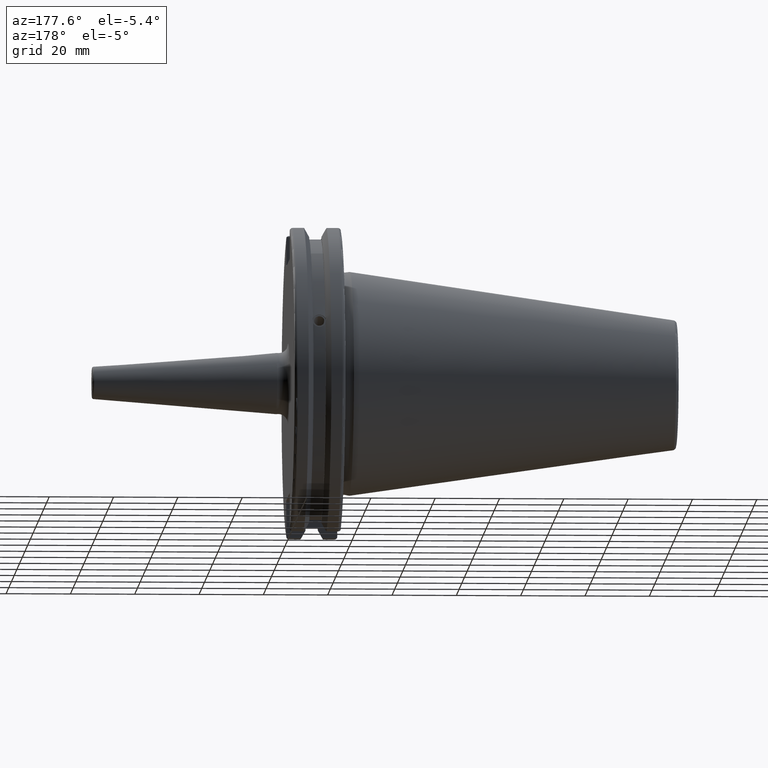
[diagram: clean part render]
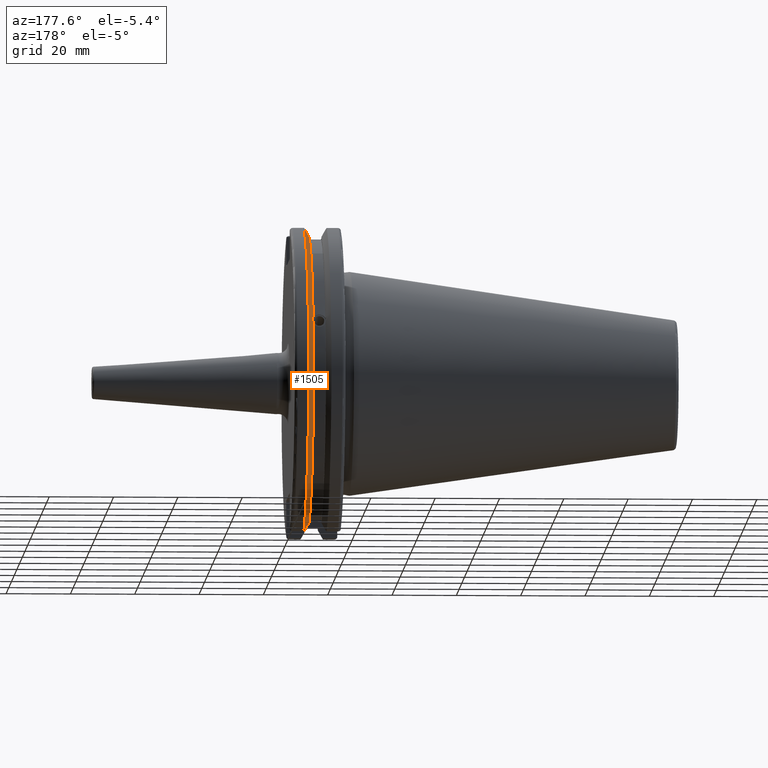
[diagram: same view with one face highlighted and labeled with its STEP entity id]
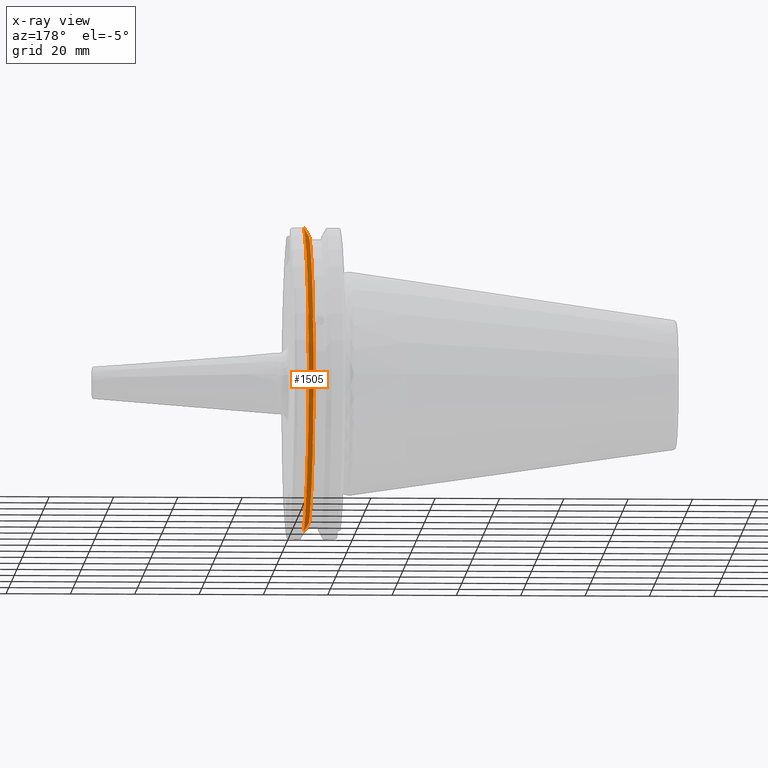
[diagram: x-ray of the same camera — body ghosted, the highlighted face saturated]
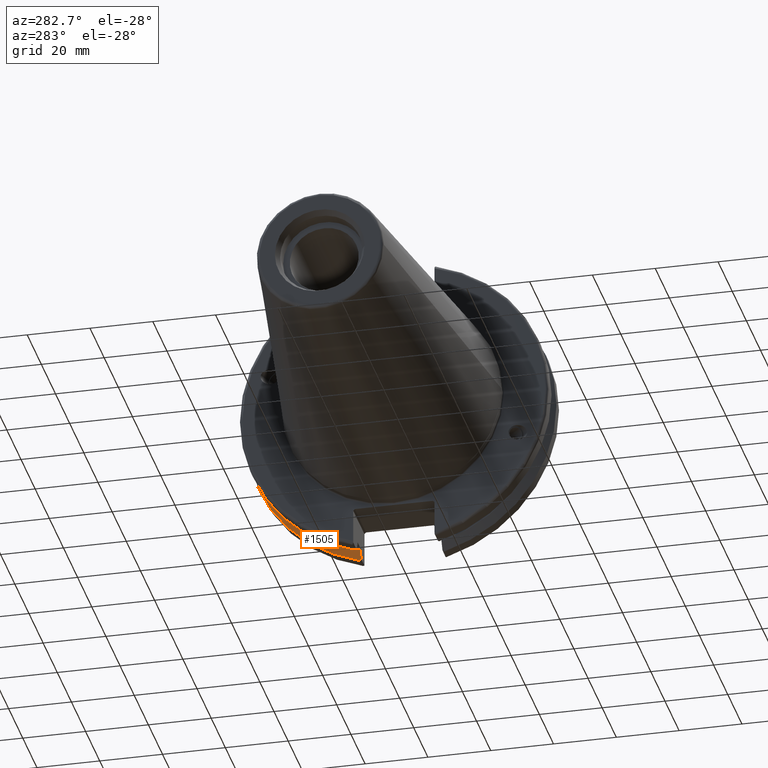
[diagram: same view with one face highlighted and labeled with its STEP entity id]
A machine part, auxiliary view. The second image highlights one B-rep face of the part: STEP entity #1505.
The next image is the same camera in x-ray: the body ghosted, the highlighted face saturated — about 0% of this face is hidden behind the body in this view.
A second angle (auxiliary view) of the same face is appended — the face is thin or edge-on in the first view.
In plain terms, the highlighted conical surface has half-angle 60 deg.
Its self-contained STEP definition (entity closure, byte-faithful):
#26=(
BOUNDED_CURVE()
B_SPLINE_CURVE(2,(#2803,#2804,#2805),.UNSPECIFIED.,.F.,.F.)
B_SPLINE_CURVE_WITH_KNOTS((3,3),(0.325260944932521,0.390084992222202),
 .UNSPECIFIED.)
CURVE()
GEOMETRIC_REPRESENTATION_ITEM()
RATIONAL_B_SPLINE_CURVE((1.00019140645994,1.00011477674864,1.))
REPRESENTATION_ITEM('')
);
#27=(
BOUNDED_CURVE()
B_SPLINE_CURVE(2,(#2817,#2818,#2819),.UNSPECIFIED.,.F.,.F.)
B_SPLINE_CURVE_WITH_KNOTS((3,3),(0.0558332664532001,0.331657177124504),
 .UNSPECIFIED.)
CURVE()
GEOMETRIC_REPRESENTATION_ITEM()
RATIONAL_B_SPLINE_CURVE((1.00012873636632,1.00038235574022,1.))
REPRESENTATION_ITEM('')
);
#32=(
BOUNDED_CURVE()
B_SPLINE_CURVE(2,(#2982,#2983,#2984),.UNSPECIFIED.,.F.,.F.)
B_SPLINE_CURVE_WITH_KNOTS((3,3),(0.,0.275823910671402),.UNSPECIFIED.)
CURVE()
GEOMETRIC_REPRESENTATION_ITEM()
RATIONAL_B_SPLINE_CURVE((1.,1.00038235574129,1.00012873636668))
REPRESENTATION_ITEM('')
);
#33=(
BOUNDED_CURVE()
B_SPLINE_CURVE(2,(#2999,#3000,#3001),.UNSPECIFIED.,.F.,.F.)
B_SPLINE_CURVE_WITH_KNOTS((3,3),(0.,0.0648240472897064),.UNSPECIFIED.)
CURVE()
GEOMETRIC_REPRESENTATION_ITEM()
RATIONAL_B_SPLINE_CURVE((1.,1.00011477674844,1.00019140645961))
REPRESENTATION_ITEM('')
);
#53=B_SPLINE_CURVE_WITH_KNOTS('',3,(#2599,#2600,#2601,#2602,#2603,#2604,
#2605,#2606),.UNSPECIFIED.,.F.,.F.,(4,2,2,4),(0.426712868358719,0.441644498666905,
0.480313313223129,0.518982127779353),.UNSPECIFIED.);
#57=B_SPLINE_CURVE_WITH_KNOTS('',3,(#2661,#2662,#2663,#2664,#2665,#2666,
#2667,#2668),.UNSPECIFIED.,.F.,.F.,(4,2,2,4),(0.518982127779353,0.557650942335576,
0.5963197568918,0.611251387199989),.UNSPECIFIED.);
#84=CONICAL_SURFACE('',#1680,47.8172386482472,1.0471975511966);
#422=FACE_OUTER_BOUND('',#522,.T.);
#522=EDGE_LOOP('',(#1365,#1366,#1367,#1368,#1369,#1370,#1371,#1372,#1373));
#576=CIRCLE('',#1613,46.4219772964944);
#600=CIRCLE('',#1673,49.2125);
#603=CIRCLE('',#1681,46.4219772964944);
#678=VERTEX_POINT('',#2596);
#679=VERTEX_POINT('',#2598);
#686=VERTEX_POINT('',#2659);
#695=VERTEX_POINT('',#2701);
#723=VERTEX_POINT('',#2800);
#724=VERTEX_POINT('',#2802);
#749=VERTEX_POINT('',#2979);
#750=VERTEX_POINT('',#2981);
#753=VERTEX_POINT('',#2997);
#848=EDGE_CURVE('',#679,#678,#53,.T.);
#856=EDGE_CURVE('',#678,#686,#57,.T.);
#868=EDGE_CURVE('',#695,#679,#576,.T.);
#905=EDGE_CURVE('',#723,#724,#26,.T.);
#910=EDGE_CURVE('',#723,#695,#27,.T.);
#955=EDGE_CURVE('',#750,#749,#32,.T.);
#963=EDGE_CURVE('',#753,#749,#33,.T.);
#964=EDGE_CURVE('',#724,#753,#600,.T.);
#970=EDGE_CURVE('',#686,#750,#603,.T.);
#1365=ORIENTED_EDGE('',*,*,#848,.T.);
#1366=ORIENTED_EDGE('',*,*,#856,.T.);
#1367=ORIENTED_EDGE('',*,*,#970,.T.);
#1368=ORIENTED_EDGE('',*,*,#955,.T.);
#1369=ORIENTED_EDGE('',*,*,#963,.F.);
#1370=ORIENTED_EDGE('',*,*,#964,.F.);
#1371=ORIENTED_EDGE('',*,*,#905,.F.);
#1372=ORIENTED_EDGE('',*,*,#910,.T.);
#1373=ORIENTED_EDGE('',*,*,#868,.T.);
#1505=ADVANCED_FACE('',(#422),#84,.T.);
#1613=AXIS2_PLACEMENT_3D('',#2702,#1886,#1887);
#1673=AXIS2_PLACEMENT_3D('',#3003,#2053,#2054);
#1680=AXIS2_PLACEMENT_3D('',#3016,#2070,#2071);
#1681=AXIS2_PLACEMENT_3D('',#3017,#2072,#2073);
#1886=DIRECTION('center_axis',(1.,0.,0.));
#1887=DIRECTION('ref_axis',(0.,0.,-1.));
#2053=DIRECTION('center_axis',(1.,0.,0.));
#2054=DIRECTION('ref_axis',(0.,0.,-1.));
#2070=DIRECTION('center_axis',(1.,0.,0.));
#2071=DIRECTION('ref_axis',(0.,1.,0.));
#2072=DIRECTION('center_axis',(1.,0.,0.));
#2073=DIRECTION('ref_axis',(0.,0.,-1.));
#2596=CARTESIAN_POINT('',(13.2341,43.923494649906,15.9868446375166));
#2598=CARTESIAN_POINT('',(13.0491,43.9096390749305,15.0646464421033));
#2599=CARTESIAN_POINT('Ctrl Pts',(13.0491,43.9096390749305,15.0646464421033));
#2600=CARTESIAN_POINT('Ctrl Pts',(13.0660815609661,43.9250360001461,15.1104047527575));
#2601=CARTESIAN_POINT('Ctrl Pts',(13.0821132459668,43.9385582852181,15.1564111356409));
#2602=CARTESIAN_POINT('Ctrl Pts',(13.1358132615496,43.9797830409459,15.3217566390709));
#2603=CARTESIAN_POINT('Ctrl Pts',(13.1719838933644,43.9989016655819,15.4570249042868));
#2604=CARTESIAN_POINT('Ctrl Pts',(13.2212913174802,43.9931221605126,15.7289849146254));
#2605=CARTESIAN_POINT('Ctrl Pts',(13.2341,43.9675796948952,15.8657219718732));
#2606=CARTESIAN_POINT('Ctrl Pts',(13.2341,43.923494649906,15.9868446375166));
#2659=CARTESIAN_POINT('',(13.0491,43.3201030900029,16.684383248648));
#2661=CARTESIAN_POINT('Ctrl Pts',(13.2341,43.923494649906,15.9868446375166));
#2662=CARTESIAN_POINT('Ctrl Pts',(13.2341,43.8794096049169,16.10796730316));
#2663=CARTESIAN_POINT('Ctrl Pts',(13.2212913174802,43.8110833825827,16.2291323464527));
#2664=CARTESIAN_POINT('Ctrl Pts',(13.1719838933644,43.6406982153492,16.441180795372));
#2665=CARTESIAN_POINT('Ctrl Pts',(13.1358132615496,43.5391037343221,16.5325130832406));
#2666=CARTESIAN_POINT('Ctrl Pts',(13.0821132459668,43.4012416983557,16.6326763251437));
#2667=CARTESIAN_POINT('Ctrl Pts',(13.0660815609661,43.3613106941341,16.6592273018006));
#2668=CARTESIAN_POINT('Ctrl Pts',(13.0491,43.3201030900029,16.684383248648));
#2701=CARTESIAN_POINT('',(13.0491,12.95,-44.5791147973605));
#2702=CARTESIAN_POINT('Origin',(13.0491,0.,0.));
#2800=CARTESIAN_POINT('',(14.3818103943757,12.95,-46.9780755322918));
#2802=CARTESIAN_POINT('',(14.6602090340487,13.4317035994433,-47.3440544806494));
#2803=CARTESIAN_POINT('Ctrl Pts',(14.3818103943757,12.95,-46.9780755322918));
#2804=CARTESIAN_POINT('Ctrl Pts',(14.5199310333617,13.1896660169965,-47.1601640966264));
#2805=CARTESIAN_POINT('Ctrl Pts',(14.6602090340487,13.4317035994433,-47.3440544806494));
#2817=CARTESIAN_POINT('Ctrl Pts',(14.3818103943757,12.95,-46.9780755322918));
#2818=CARTESIAN_POINT('Ctrl Pts',(13.6979955094851,12.95,-45.7494966802933));
#2819=CARTESIAN_POINT('Ctrl Pts',(13.0491,12.95,-44.5791147973604));
#2979=CARTESIAN_POINT('',(14.3818103943757,12.95,46.9780755322918));
#2981=CARTESIAN_POINT('',(13.0491,12.95,44.5791147973604));
#2982=CARTESIAN_POINT('Ctrl Pts',(13.0491,12.95,44.5791147973604));
#2983=CARTESIAN_POINT('Ctrl Pts',(13.6979955094846,12.95,45.7494966802924));
#2984=CARTESIAN_POINT('Ctrl Pts',(14.3818103943757,12.95,46.9780755322918));
#2997=CARTESIAN_POINT('',(14.6602090340487,13.4317035994433,47.3440544806494));
#2999=CARTESIAN_POINT('Ctrl Pts',(14.6602090340487,13.4317035994433,47.3440544806494));
#3000=CARTESIAN_POINT('Ctrl Pts',(14.5199310333618,13.1896660169966,47.1601640966264));
#3001=CARTESIAN_POINT('Ctrl Pts',(14.3818103943757,12.95,46.9780755322918));
#3003=CARTESIAN_POINT('Origin',(14.6602090340487,0.,0.));
#3016=CARTESIAN_POINT('Origin',(13.8546545170244,0.,0.));
#3017=CARTESIAN_POINT('Origin',(13.0491,0.,0.));